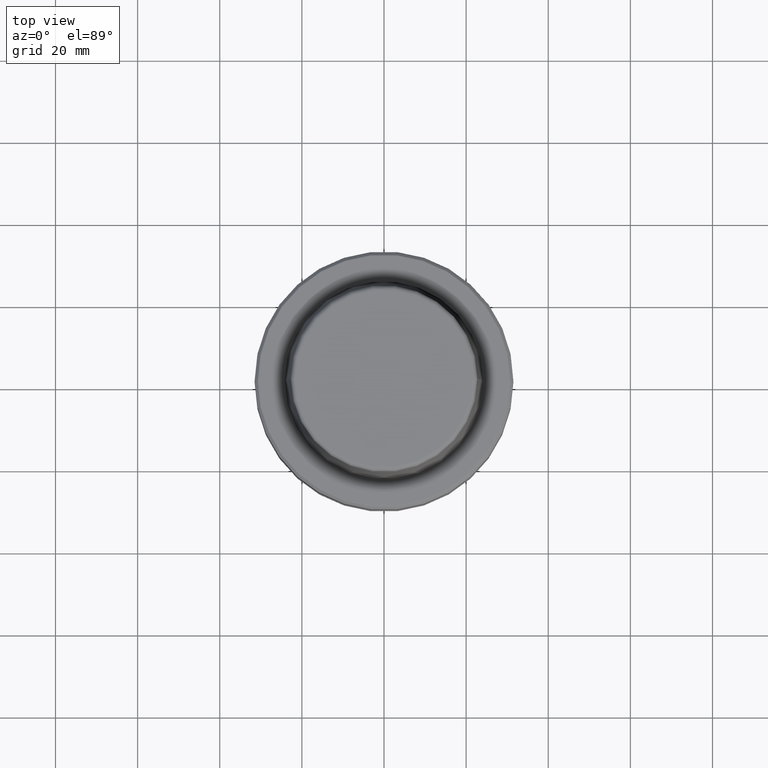
[diagram: clean part render]
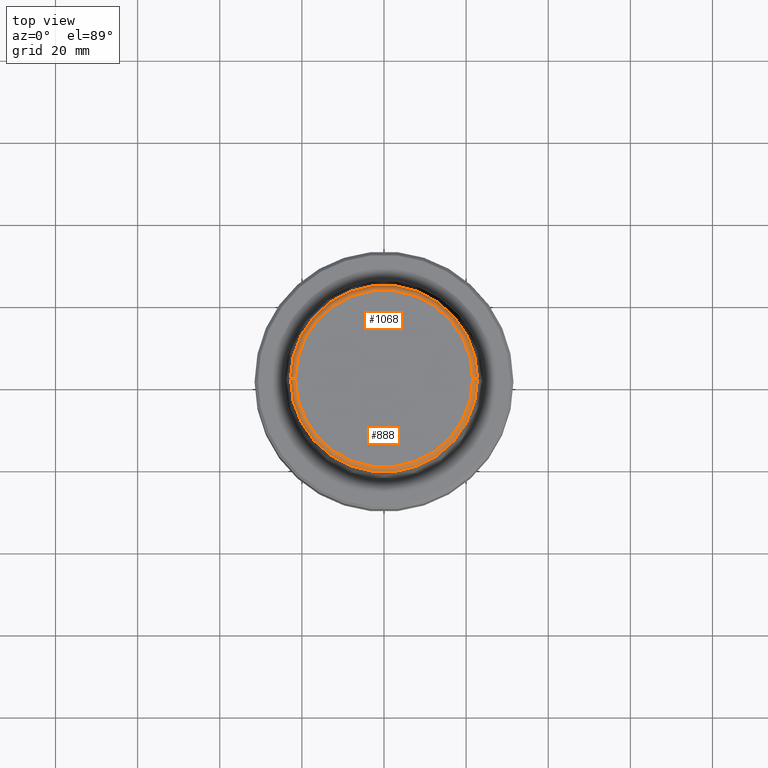
[diagram: same view with one multi-face feature highlighted, each face labeled with its STEP entity id]
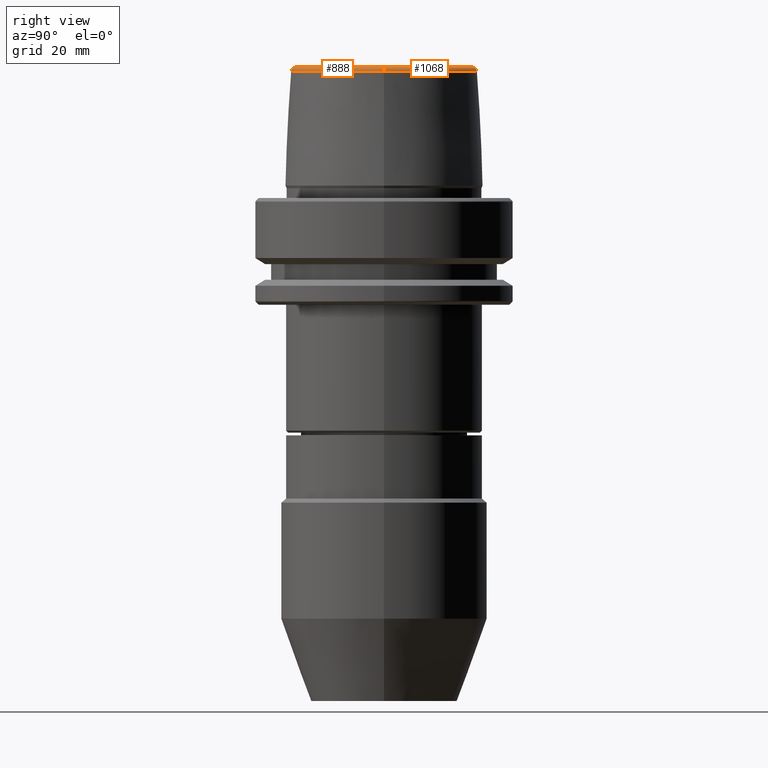
[diagram: same view with one multi-face feature highlighted, each face labeled with its STEP entity id]
A machine part, top view. The highlighted faces form ONE feature: a constant-radius fillet chain: 2 tangent blend faces with common blend radius 1.2 mm. The faces share edges in the B-rep.
A second angle (right view) of the same feature is appended — it is thin or edge-on in the first view.
Their STEP definitions:
[1] entity #888 (Torus):
#11 = ORIENTED_EDGE ( 'NONE', *, *, #692, .F. ) ;
#13 = AXIS2_PLACEMENT_3D ( 'NONE', #1226, #542, #1343 ) ;
#41 = TOROIDAL_SURFACE ( 'NONE', #1483, 21.58108272732117100, 1.200000000000003100 ) ;
#51 = AXIS2_PLACEMENT_3D ( 'NONE', #1304, #1085, #53 ) ;
#53 = DIRECTION ( 'NONE',  ( 0.0000000000000000000, 0.0000000000000000000, -1.000000000000000000 ) ) ;
#66 = AXIS2_PLACEMENT_3D ( 'NONE', #621, #1430, #740 ) ;
#117 = CARTESIAN_POINT ( 'NONE',  ( 22.77957961851797100, 2.874852597157249900E-015, 30.76004333261571900 ) ) ;
#146 = CIRCLE ( 'NONE', #13, 1.200000000000003100 ) ;
#204 = VERTEX_POINT ( 'NONE', #889 ) ;
#248 = EDGE_CURVE ( 'NONE', #1371, #553, #570, .T. ) ;
#272 = CARTESIAN_POINT ( 'NONE',  ( -21.58108272732117100, 2.716307157494421400E-015, 31.89999999999999900 ) ) ;
#323 = ORIENTED_EDGE ( 'NONE', *, *, #1506, .F. ) ;
#339 = EDGE_LOOP ( 'NONE', ( #323, #898, #435, #11 ) ) ;
#377 = DIRECTION ( 'NONE',  ( -0.0000000000000000000, -0.0000000000000000000, 1.000000000000000000 ) ) ;
#384 = CARTESIAN_POINT ( 'NONE',  ( -22.77957961851797100, 0.0000000000000000000, 30.76004333261571900 ) ) ;
#416 = DIRECTION ( 'NONE',  ( -0.0000000000000000000, -0.0000000000000000000, 1.000000000000000000 ) ) ;
#435 = ORIENTED_EDGE ( 'NONE', *, *, #456, .T. ) ;
#456 = EDGE_CURVE ( 'NONE', #553, #204, #830, .T. ) ;
#493 = FACE_OUTER_BOUND ( 'NONE', #339, .T. ) ;
#542 = DIRECTION ( 'NONE',  ( 1.224646799147353200E-016, 1.000000000000000000, 0.0000000000000000000 ) ) ;
#553 = VERTEX_POINT ( 'NONE', #117 ) ;
#570 = CIRCLE ( 'NONE', #1016, 22.77957961851797100 ) ;
#621 = CARTESIAN_POINT ( 'NONE',  ( 0.0000000000000000000, 0.0000000000000000000, 31.89999999999999900 ) ) ;
#692 = EDGE_CURVE ( 'NONE', #1423, #204, #854, .T. ) ;
#740 = DIRECTION ( 'NONE',  ( 1.000000000000000000, 0.0000000000000000000, 0.0000000000000000000 ) ) ;
#830 = CIRCLE ( 'NONE', #51, 1.200000000000003100 ) ;
#854 = CIRCLE ( 'NONE', #66, 21.58108272732117100 ) ;
#888 = ADVANCED_FACE ( 'NONE', ( #493 ), #41, .T. ) ;
#889 = CARTESIAN_POINT ( 'NONE',  ( 21.58108272732117100, 0.0000000000000000000, 31.89999999999999900 ) ) ;
#898 = ORIENTED_EDGE ( 'NONE', *, *, #248, .T. ) ;
#1016 = AXIS2_PLACEMENT_3D ( 'NONE', #1149, #416, #1260 ) ;
#1075 = CARTESIAN_POINT ( 'NONE',  ( 0.0000000000000000000, 0.0000000000000000000, 30.69999999999999200 ) ) ;
#1085 = DIRECTION ( 'NONE',  ( 0.0000000000000000000, -1.000000000000000000, 0.0000000000000000000 ) ) ;
#1149 = CARTESIAN_POINT ( 'NONE',  ( 0.0000000000000000000, 0.0000000000000000000, 30.76004333261571900 ) ) ;
#1184 = DIRECTION ( 'NONE',  ( 1.000000000000000000, 0.0000000000000000000, 0.0000000000000000000 ) ) ;
#1226 = CARTESIAN_POINT ( 'NONE',  ( -21.58108272732117100, 2.642920388414810300E-015, 30.69999999999999200 ) ) ;
#1260 = DIRECTION ( 'NONE',  ( 1.000000000000000000, 0.0000000000000000000, 0.0000000000000000000 ) ) ;
#1304 = CARTESIAN_POINT ( 'NONE',  ( 21.58108272732117100, 0.0000000000000000000, 30.69999999999999200 ) ) ;
#1343 = DIRECTION ( 'NONE',  ( -1.000000000000000000, 1.224646799147353200E-016, 0.0000000000000000000 ) ) ;
#1371 = VERTEX_POINT ( 'NONE', #384 ) ;
#1423 = VERTEX_POINT ( 'NONE', #272 ) ;
#1430 = DIRECTION ( 'NONE',  ( -0.0000000000000000000, -0.0000000000000000000, 1.000000000000000000 ) ) ;
#1483 = AXIS2_PLACEMENT_3D ( 'NONE', #1075, #377, #1184 ) ;
#1506 = EDGE_CURVE ( 'NONE', #1371, #1423, #146, .T. ) ;
[2] entity #1068 (Torus):
#10 = ORIENTED_EDGE ( 'NONE', *, *, #1412, .F. ) ;
#13 = AXIS2_PLACEMENT_3D ( 'NONE', #1226, #542, #1343 ) ;
#49 = TOROIDAL_SURFACE ( 'NONE', #1341, 21.58108272732117100, 1.200000000000003100 ) ;
#51 = AXIS2_PLACEMENT_3D ( 'NONE', #1304, #1085, #53 ) ;
#53 = DIRECTION ( 'NONE',  ( 0.0000000000000000000, 0.0000000000000000000, -1.000000000000000000 ) ) ;
#54 = DIRECTION ( 'NONE',  ( -0.0000000000000000000, -0.0000000000000000000, 1.000000000000000000 ) ) ;
#117 = CARTESIAN_POINT ( 'NONE',  ( 22.77957961851797100, 2.874852597157249900E-015, 30.76004333261571900 ) ) ;
#146 = CIRCLE ( 'NONE', #13, 1.200000000000003100 ) ;
#204 = VERTEX_POINT ( 'NONE', #889 ) ;
#272 = CARTESIAN_POINT ( 'NONE',  ( -21.58108272732117100, 2.716307157494421400E-015, 31.89999999999999900 ) ) ;
#290 = DIRECTION ( 'NONE',  ( 1.000000000000000000, 0.0000000000000000000, 0.0000000000000000000 ) ) ;
#353 = DIRECTION ( 'NONE',  ( 1.000000000000000000, 0.0000000000000000000, 0.0000000000000000000 ) ) ;
#384 = CARTESIAN_POINT ( 'NONE',  ( -22.77957961851797100, 0.0000000000000000000, 30.76004333261571900 ) ) ;
#400 = CARTESIAN_POINT ( 'NONE',  ( 0.0000000000000000000, 0.0000000000000000000, 30.69999999999999200 ) ) ;
#456 = EDGE_CURVE ( 'NONE', #553, #204, #830, .T. ) ;
#503 = EDGE_CURVE ( 'NONE', #553, #1371, #817, .T. ) ;
#525 = AXIS2_PLACEMENT_3D ( 'NONE', #746, #54, #856 ) ;
#542 = DIRECTION ( 'NONE',  ( 1.224646799147353200E-016, 1.000000000000000000, 0.0000000000000000000 ) ) ;
#553 = VERTEX_POINT ( 'NONE', #117 ) ;
#596 = CARTESIAN_POINT ( 'NONE',  ( 0.0000000000000000000, 0.0000000000000000000, 30.76004333261571900 ) ) ;
#711 = AXIS2_PLACEMENT_3D ( 'NONE', #596, #812, #353 ) ;
#746 = CARTESIAN_POINT ( 'NONE',  ( 0.0000000000000000000, 0.0000000000000000000, 31.89999999999999900 ) ) ;
#812 = DIRECTION ( 'NONE',  ( -0.0000000000000000000, -0.0000000000000000000, 1.000000000000000000 ) ) ;
#817 = CIRCLE ( 'NONE', #711, 22.77957961851797100 ) ;
#827 = EDGE_LOOP ( 'NONE', ( #1277, #1368, #10, #971 ) ) ;
#830 = CIRCLE ( 'NONE', #51, 1.200000000000003100 ) ;
#856 = DIRECTION ( 'NONE',  ( 1.000000000000000000, 0.0000000000000000000, 0.0000000000000000000 ) ) ;
#889 = CARTESIAN_POINT ( 'NONE',  ( 21.58108272732117100, 0.0000000000000000000, 31.89999999999999900 ) ) ;
#971 = ORIENTED_EDGE ( 'NONE', *, *, #456, .F. ) ;
#1068 = ADVANCED_FACE ( 'NONE', ( #1216 ), #49, .T. ) ;
#1085 = DIRECTION ( 'NONE',  ( 0.0000000000000000000, -1.000000000000000000, 0.0000000000000000000 ) ) ;
#1216 = FACE_OUTER_BOUND ( 'NONE', #827, .T. ) ;
#1226 = CARTESIAN_POINT ( 'NONE',  ( -21.58108272732117100, 2.642920388414810300E-015, 30.69999999999999200 ) ) ;
#1277 = ORIENTED_EDGE ( 'NONE', *, *, #503, .T. ) ;
#1304 = CARTESIAN_POINT ( 'NONE',  ( 21.58108272732117100, 0.0000000000000000000, 30.69999999999999200 ) ) ;
#1341 = AXIS2_PLACEMENT_3D ( 'NONE', #400, #1458, #290 ) ;
#1343 = DIRECTION ( 'NONE',  ( -1.000000000000000000, 1.224646799147353200E-016, 0.0000000000000000000 ) ) ;
#1368 = ORIENTED_EDGE ( 'NONE', *, *, #1506, .T. ) ;
#1371 = VERTEX_POINT ( 'NONE', #384 ) ;
#1398 = CIRCLE ( 'NONE', #525, 21.58108272732117100 ) ;
#1412 = EDGE_CURVE ( 'NONE', #204, #1423, #1398, .T. ) ;
#1423 = VERTEX_POINT ( 'NONE', #272 ) ;
#1458 = DIRECTION ( 'NONE',  ( -0.0000000000000000000, -0.0000000000000000000, 1.000000000000000000 ) ) ;
#1506 = EDGE_CURVE ( 'NONE', #1371, #1423, #146, .T. ) ;